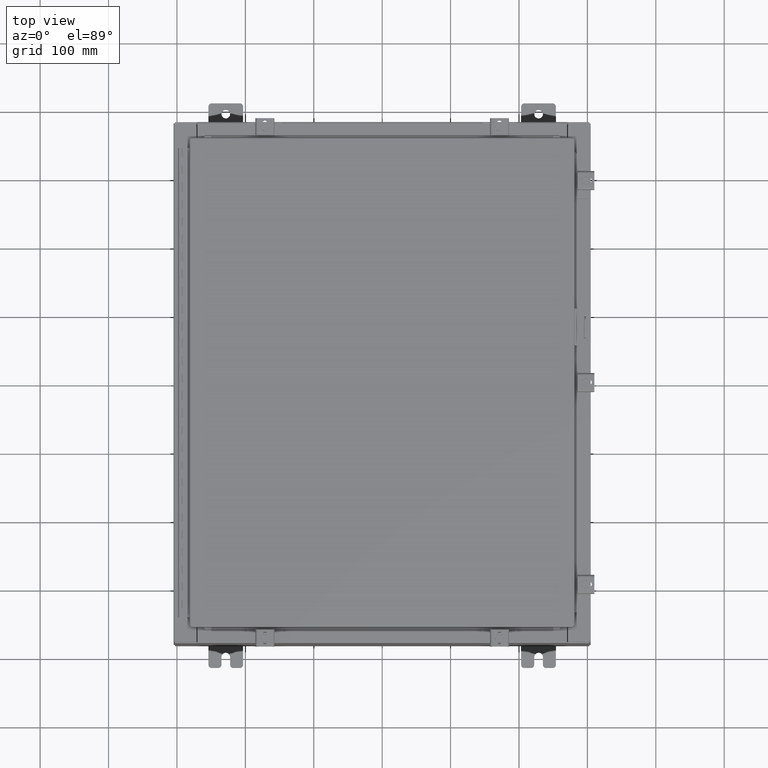
[diagram: clean part render]
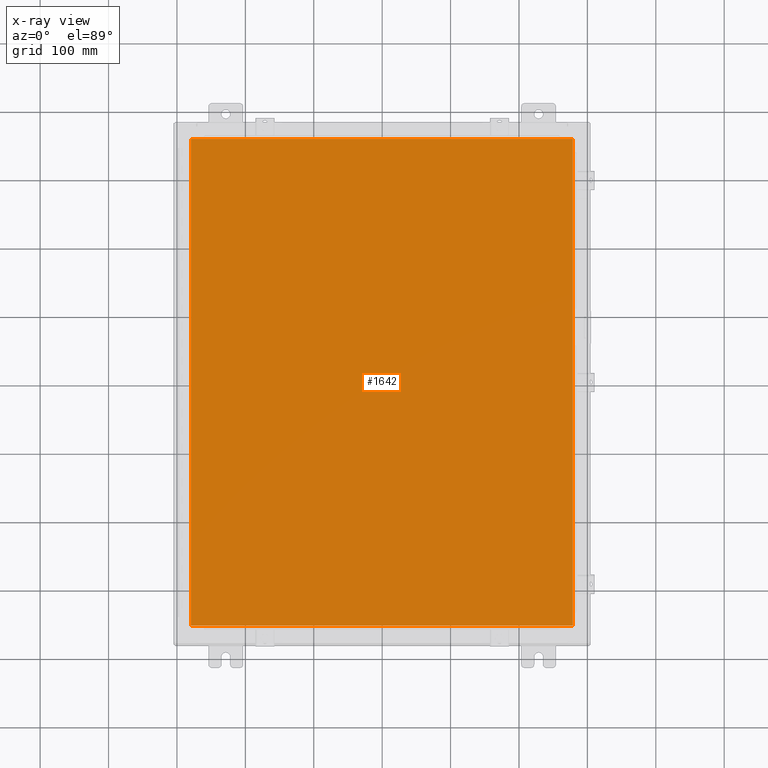
[diagram: x-ray — body ghosted, one internal face saturated and labeled with its STEP entity id]
A machine part, top view, then the same camera in x-ray: the body is ghosted and one INTERNAL B-rep face — a face not visible from any outside direction — is saturated and labeled: STEP entity #1642.
In plain terms, the highlighted planar face has unit normal (0, 0, -1).
Its self-contained STEP definition (entity closure, byte-faithful):
#540 = EDGE_CURVE ( 'NONE', #7854, #14025, #16437, .T. ) ;
#1070 = VECTOR ( 'NONE', #7662, 39.37007874015748100 ) ;
#1107 = DIRECTION ( 'NONE',  ( 0.0000000000000000000, 1.000000000000000000, 0.0000000000000000000 ) ) ;
#1642 = ADVANCED_FACE ( 'NONE', ( #2331 ), #11706, .T. ) ;
#2331 = FACE_OUTER_BOUND ( 'NONE', #10267, .T. ) ;
#3566 = VERTEX_POINT ( 'NONE', #9319 ) ;
#7266 = VERTEX_POINT ( 'NONE', #15926 ) ;
#7501 = CARTESIAN_POINT ( 'NONE',  ( -10.99030000000000000, 14.00629999999999800, -0.07470000000000000300 ) ) ;
#7662 = DIRECTION ( 'NONE',  ( -1.000000000000000000, -0.0000000000000000000, -0.0000000000000000000 ) ) ;
#7854 = VERTEX_POINT ( 'NONE', #25451 ) ;
#9319 = CARTESIAN_POINT ( 'NONE',  ( 10.99030000000000000, -14.00629999999999800, -0.07470000000000000300 ) ) ;
#9474 = CARTESIAN_POINT ( 'NONE',  ( -10.99030000000000000, 14.00630000000000100, -0.07470000000000019700 ) ) ;
#10267 = EDGE_LOOP ( 'NONE', ( #16032, #10332, #34341, #17945 ) ) ;
#10332 = ORIENTED_EDGE ( 'NONE', *, *, #22990, .F. ) ;
#11706 = PLANE ( 'NONE',  #35140 ) ;
#12093 = LINE ( 'NONE', #9474, #34280 ) ;
#12505 = DIRECTION ( 'NONE',  ( 0.0000000000000000000, 0.0000000000000000000, -1.000000000000000000 ) ) ;
#12518 = EDGE_CURVE ( 'NONE', #3566, #7854, #29625, .T. ) ;
#13155 = VECTOR ( 'NONE', #34457, 39.37007874015748100 ) ;
#14025 = VERTEX_POINT ( 'NONE', #7501 ) ;
#15511 = CARTESIAN_POINT ( 'NONE',  ( 10.99030000000000000, -14.00629999999999800, -0.07470000000000019700 ) ) ;
#15926 = CARTESIAN_POINT ( 'NONE',  ( -10.99030000000000000, -14.00629999999999600, -0.07470000000000000300 ) ) ;
#16032 = ORIENTED_EDGE ( 'NONE', *, *, #12518, .F. ) ;
#16437 = LINE ( 'NONE', #27859, #1070 ) ;
#17945 = ORIENTED_EDGE ( 'NONE', *, *, #540, .F. ) ;
#22670 = DIRECTION ( 'NONE',  ( -1.000000000000000000, 0.0000000000000000000, -0.0000000000000000000 ) ) ;
#22990 = EDGE_CURVE ( 'NONE', #7266, #3566, #36226, .T. ) ;
#23885 = EDGE_CURVE ( 'NONE', #14025, #7266, #12093, .T. ) ;
#25451 = CARTESIAN_POINT ( 'NONE',  ( 10.99030000000000000, 14.00629999999999800, -0.07470000000000000300 ) ) ;
#27859 = CARTESIAN_POINT ( 'NONE',  ( 10.99030000000000000, 14.00629999999999800, -0.07470000000000019700 ) ) ;
#28715 = VECTOR ( 'NONE', #1107, 39.37007874015748100 ) ;
#29625 = LINE ( 'NONE', #15511, #28715 ) ;
#29705 = DIRECTION ( 'NONE',  ( 0.0000000000000000000, -1.000000000000000000, 0.0000000000000000000 ) ) ;
#29911 = CARTESIAN_POINT ( 'NONE',  ( 0.0000000000000000000, 0.0000000000000000000, -0.07470000000000000300 ) ) ;
#31531 = CARTESIAN_POINT ( 'NONE',  ( -10.99029999999999600, -14.00629999999999800, -0.07470000000000019700 ) ) ;
#34280 = VECTOR ( 'NONE', #29705, 39.37007874015748100 ) ;
#34341 = ORIENTED_EDGE ( 'NONE', *, *, #23885, .F. ) ;
#34457 = DIRECTION ( 'NONE',  ( 1.000000000000000000, -0.0000000000000000000, -0.0000000000000000000 ) ) ;
#35140 = AXIS2_PLACEMENT_3D ( 'NONE', #29911, #12505, #22670 ) ;
#36226 = LINE ( 'NONE', #31531, #13155 ) ;